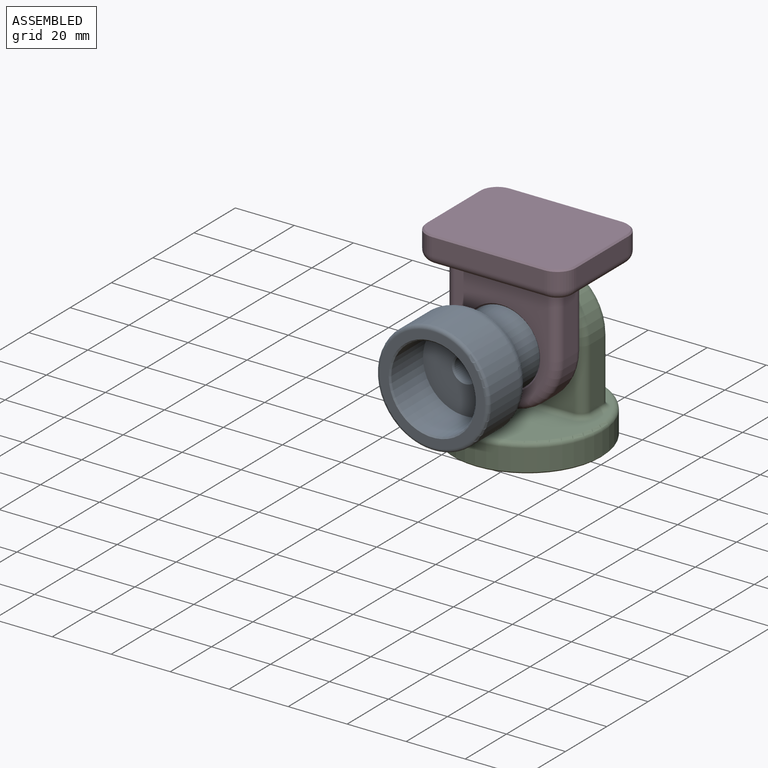
[diagram: assembled view]
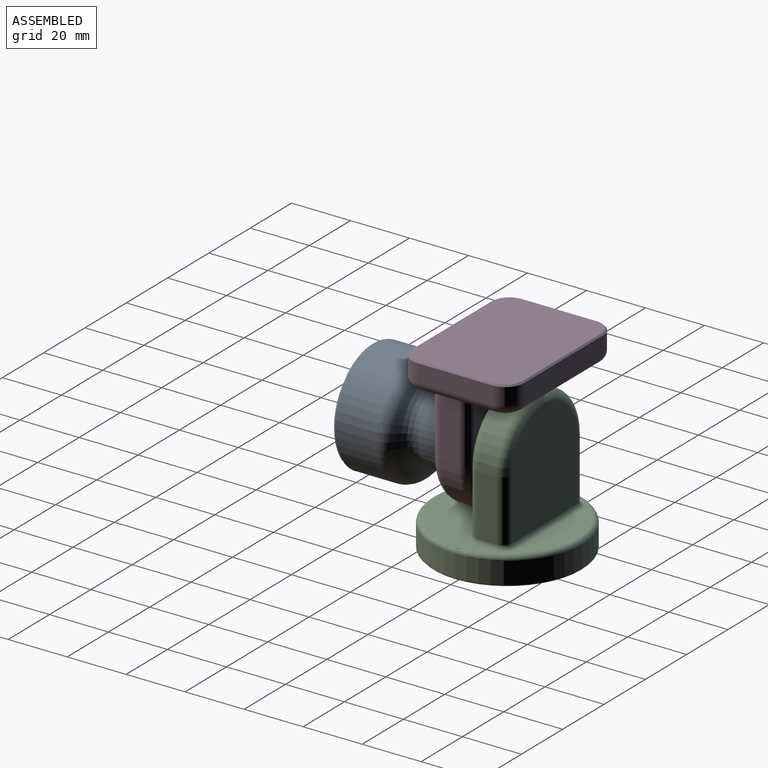
[diagram: assembled view, second angle]
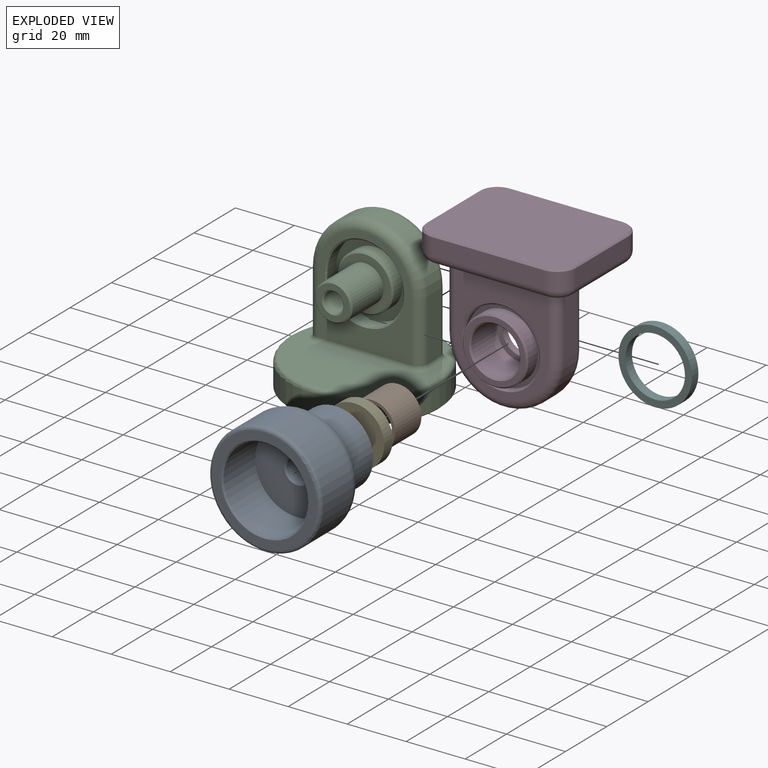
[diagram: exploded view]
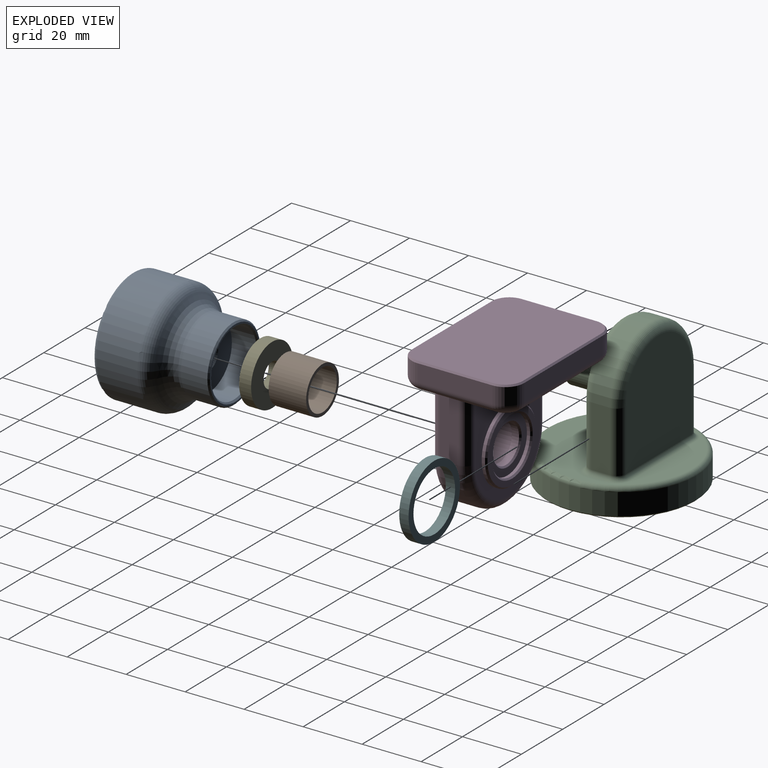
[diagram: exploded view, second angle]
ASSEMBLY  parts=6 mates=9
PART A: 17 faces, bbox 34.9x41.2x41.2 mm
  f0: cylinder r=19.05mm len=38.1mm, axis (1,0,0), area 1662.7mm2, adj f5,f10
  f1: plane 35.56x35.56mm, normal (1,0,0), area 305.4mm2, adj f10,f11
  f2: cylinder r=12.7mm len=25.4mm, axis (1,0,0), area 719.5mm2, adj f4,f15
  f3: plane 24.38x24.38mm, normal (-1,0,0), area 42.8mm2, adj f15,f16
  f4: torus R=19.05mm, axis (1,0,0), area 616.9mm2, adj f2,f5
  f5: torus R=13.97mm, axis (-1,0,0), area 640.3mm2, adj f0,f4
  f6: cylinder r=11.11mm len=22.23mm, axis (-1,0,0), area 585.2mm2, adj f7,f16
  f7: plane 22.23x22.23mm, normal (-1,0,0), area 325mm2, adj f6,f13
  f8: cylinder r=14.29mm len=28.58mm, axis (1,0,0), area 1379.5mm2, adj f9,f11
  f9: plane 28.58x28.58mm, normal (1,0,0), area 578.3mm2, adj f8,f14
  f10: torus R=17.78mm, axis (1,0,0), area 233mm2, adj f0,f1
  f11: cone r=14.29mm half-angle=45deg, axis (1,0,0), area 65.6mm2, adj f1,f8
  f12: cylinder r=3.97mm len=9.14mm, axis (1,0,0), area 228mm2, adj f13,f14
  f13: cone r=4.48mm half-angle=45deg, axis (-1,0,0), area 19.1mm2, adj f7,f12
  f14: cone r=3.97mm half-angle=45deg, axis (1,0,0), area 19.1mm2, adj f9,f12
  f15: cone r=12.19mm half-angle=45deg, axis (1,0,0), area 56.2mm2, adj f2,f3
  f16: cone r=11.11mm half-angle=45deg, axis (-1,0,0), area 51.3mm2, adj f3,f6
PART B: 4 faces, bbox 15.9x15.9x12.7 mm
  f0: cylinder r=7.94mm len=15.88mm, axis (0,0,-1), area 633.4mm2, adj f1,f2
  f1: plane 15.88x15.88mm, normal (0,0,1), area 49.1mm2, adj f0,f3
  f2: plane 15.88x15.88mm, normal (0,0,-1), area 49.1mm2, adj f0,f3
  f3: cylinder r=6.88mm len=13.77mm, axis (0,0,1), area 549.3mm2, adj f1,f2
PART C: 39 faces, bbox 55x55x52.4 mm
  f0: plane 18.03x18.03mm, normal (1,0,0), area 128.8mm2, adj f1,f32
  f1: cylinder r=6.35mm len=14.86mm, axis (-1,0,0), area 592.8mm2, adj f0,f5
  f2: plane 11.68x11.68mm, normal (1,0,0), area 62.5mm2, adj f5,f6
  f3: cone r=0mm half-angle=59deg, axis (1,0,0), area 39mm2, adj f4
  f4: cylinder r=3.26mm len=16.43mm, axis (1,0,0), area 336.8mm2, adj f3,f6
  f5: cone r=5.84mm half-angle=45deg, axis (-1,0,0), area 27.5mm2, adj f1,f2
  f6: cone r=3.26mm half-angle=45deg, axis (1,0,0), area 15.9mm2, adj f2,f4
  f7: cylinder r=9.53mm len=19.05mm, axis (1,0,0), area 254.6mm2, adj f9,f32
  f8: cylinder r=12.95mm len=25.91mm, axis (1,0,0), area 346.3mm2, adj f9,f33
  f9: plane 25.91x25.91mm, normal (1,0,0), area 242.2mm2, adj f7,f8
  f10: plane 49.78x49.78mm, normal (0,0,-1), area 1883.6mm2, adj f35,f38
  f11: plane 36.51x31.75mm, normal (-1,0,0), area 1051.1mm2, adj f12,f13,f16,f20
  f12: torus R=15.88mm, axis (-1,0,0), area 280.4mm2, adj f11,f13,f20,f21
  f13: cylinder r=3.17mm len=20.64mm, axis (0,0,-1), area 102.9mm2, adj f11,f12,f15,f22
  f14: cylinder r=25.4mm len=50.8mm, axis (0,0,-1), area 1185.7mm2, adj f34,f35
  f15: torus R=4.76mm, axis (0,0,1), area 14.7mm2, adj f13,f16,f18,f23
  f16: cylinder r=1.59mm len=31.75mm, axis (0,1,0), area 79.2mm2, adj f11,f15,f17,f23
  f17: torus R=4.76mm, axis (0,0,1), area 14.7mm2, adj f16,f19,f20,f23
  f18: cylinder r=1.59mm len=6.35mm, axis (-1,0,0), area 15.8mm2, adj f15,f22,f23,f24
  f19: cylinder r=1.59mm len=6.35mm, axis (1,0,0), area 15.8mm2, adj f17,f23,f25,f26
  f20: cylinder r=3.17mm len=20.64mm, axis (0,0,1), area 102.9mm2, adj f11,f12,f17,f26
  f21: cylinder r=19.05mm len=38.1mm, axis (-1,0,0), area 380mm2, adj f12,f22,f26,f27
  f22: plane 20.64x6.35mm, normal (0,1,0), area 131mm2, adj f13,f18,f21,f28
  f23: plane 47.63x47.63mm, normal (0,0,1), area 1145.6mm2, adj f15,f16,f17,f18,f19,f24,f25,f29
  f24: torus R=4.76mm, axis (0,0,1), area 14.7mm2, adj f18,f23,f28,f29
  f25: torus R=4.76mm, axis (0,0,1), area 14.7mm2, adj f19,f23,f29,f30
  f26: plane 20.64x6.35mm, normal (0,-1,0), area 131mm2, adj f19,f20,f21,f30
  f27: torus R=15.88mm, axis (-1,0,0), area 280.4mm2, adj f21,f28,f30,f31
  f28: cylinder r=3.17mm len=20.64mm, axis (0,0,1), area 102.9mm2, adj f22,f24,f27,f31
  f29: cylinder r=1.59mm len=31.75mm, axis (0,-1,0), area 79.2mm2, adj f23,f24,f25,f31
  f30: cylinder r=3.17mm len=20.64mm, axis (0,0,-1), area 102.9mm2, adj f25,f26,f27,f31
  f31: plane 36.51x31.75mm, normal (1,0,0), area 481.8mm2, adj f27,f28,f29,f30,f33
  f32: cone r=9.02mm half-angle=45deg, axis (-1,0,0), area 41.8mm2, adj f0,f7
  f33: cone r=12.95mm half-angle=45deg, axis (1,0,0), area 59.6mm2, adj f8,f31
  f34: torus R=23.81mm, axis (0,0,1), area 388.9mm2, adj f14,f23
  f35: cone r=24.89mm half-angle=45deg, axis (0,0,1), area 113.5mm2, adj f10,f14
  f36: cone r=0mm half-angle=59deg, axis (0,0,-1), area 57.7mm2, adj f37
  f37: cylinder r=3.97mm len=7.94mm, axis (0,0,-1), area 145.7mm2, adj f36,f38
  f38: cone r=3.97mm half-angle=45deg, axis (0,0,-1), area 19.1mm2, adj f10,f37
PART D: 62 faces, bbox 51.8x39.1x52.4 mm
  f0: plane 18.92x18.92mm, normal (0,1,0), area 132.4mm2, adj f56,f57
  f1: cylinder r=8.26mm len=16.51mm, axis (0,-1,0), area 645.5mm2, adj f29,f54
  f2: plane 36.51x31.75mm, normal (0,1,0), area 564.5mm2, adj f35,f36,f37,f43,f58
  f3: plane 36.51x31.75mm, normal (0,-1,0), area 503.1mm2, adj f31,f32,f33,f34,f40
  f4: plane 20.64x6.35mm, normal (1,0,0), area 131mm2, adj f12,f32,f35,f39
  f5: plane 20.64x6.35mm, normal (-1,0,0), area 131mm2, adj f12,f34,f37,f44
  f6: plane 25.4x5.84mm, normal (-1,0,0), area 148.4mm2, adj f17,f20,f27,f53
  f7: plane 38.1x5.84mm, normal (0,-1,0), area 222.6mm2, adj f17,f18,f23,f49
  f8: plane 25.4x5.84mm, normal (1,0,0), area 148.4mm2, adj f18,f19,f22,f46
  f9: plane 38.1x5.84mm, normal (0,1,0), area 222.6mm2, adj f19,f20,f26,f50
  f10: plane 44.45x31.75mm, normal (0,0,-1), area 766.9mm2, adj f38,f39,f40,f41,f42,f43,f44,f45
  f11: plane 49.78x37.08mm, normal (0,0,1), area 1816.9mm2, adj f21,f22,f23,f24,f25,f26,f27,f28
  f12: cylinder r=19.05mm len=38.1mm, axis (0,-1,0), area 380mm2, adj f4,f5,f33,f36
  f13: cylinder r=11.11mm len=22.23mm, axis (0,1,0), area 310.4mm2, adj f16,f30
  f14: plane 21.21x21.21mm, normal (0,-1,0), area 112mm2, adj f29,f30
  f15: cylinder r=12.7mm len=25.4mm, axis (0,-1,0), area 101.3mm2, adj f16,f31
  f16: plane 25.4x25.4mm, normal (0,-1,0), area 118.8mm2, adj f13,f15
  f17: cylinder r=6.35mm len=6.35mm, axis (0,0,-1), area 58.3mm2, adj f6,f7,f25,f51
  f18: cylinder r=6.35mm len=6.35mm, axis (0,0,1), area 58.3mm2, adj f7,f8,f21,f47
  f19: cylinder r=6.35mm len=6.35mm, axis (0,0,-1), area 58.3mm2, adj f8,f9,f24,f48
  f20: cylinder r=6.35mm len=6.35mm, axis (0,0,1), area 58.3mm2, adj f6,f9,f28,f52
  f21: cone r=5.84mm half-angle=45deg, axis (0,0,-1), area 6.9mm2, adj f11,f18,f22,f23
  f22: plane 25.4x0.51mm, normal (0.71,0,0.71), area 18.2mm2, adj f8,f11,f21,f24
  f23: plane 38.1x0.51mm, normal (0,-0.71,0.71), area 27.4mm2, adj f7,f11,f21,f25
  f24: cone r=5.84mm half-angle=45deg, axis (0,0,-1), area 6.9mm2, adj f11,f19,f22,f26
  f25: cone r=5.84mm half-angle=45deg, axis (0,0,-1), area 6.9mm2, adj f11,f17,f23,f27
  f26: plane 38.1x0.51mm, normal (0,0.71,0.71), area 27.4mm2, adj f9,f11,f24,f28
  f27: plane 25.4x0.51mm, normal (-0.71,0,0.71), area 18.2mm2, adj f6,f11,f25,f28
  f28: cone r=5.84mm half-angle=45deg, axis (0,0,-1), area 6.9mm2, adj f11,f20,f26,f27
  f29: cone r=8.26mm half-angle=45deg, axis (0,-1,0), area 38.4mm2, adj f1,f14
  f30: cone r=10.6mm half-angle=45deg, axis (0,1,0), area 49mm2, adj f13,f14
  f31: cone r=12.7mm half-angle=45deg, axis (0,-1,0), area 58.5mm2, adj f3,f15
  f32: cylinder r=3.17mm len=20.64mm, axis (0,0,1), area 102.9mm2, adj f3,f4,f33,f38
  f33: torus R=15.88mm, axis (0,-1,0), area 280.4mm2, adj f3,f12,f32,f34
  f34: cylinder r=3.17mm len=20.64mm, axis (0,0,-1), area 102.9mm2, adj f3,f5,f33,f42
  f35: cylinder r=3.17mm len=20.64mm, axis (0,0,-1), area 102.9mm2, adj f2,f4,f36,f41
  f36: torus R=15.88mm, axis (0,-1,0), area 280.4mm2, adj f2,f12,f35,f37
  f37: cylinder r=3.17mm len=20.64mm, axis (0,0,1), area 102.9mm2, adj f2,f5,f36,f45
  f38: torus R=4.76mm, axis (0,0,1), area 14.7mm2, adj f10,f32,f39,f40
  f39: cylinder r=1.59mm len=6.35mm, axis (0,1,0), area 15.8mm2, adj f4,f10,f38,f41
  f40: cylinder r=1.59mm len=31.75mm, axis (1,0,0), area 79.2mm2, adj f3,f10,f38,f42
  f41: torus R=4.76mm, axis (0,0,1), area 14.7mm2, adj f10,f35,f39,f43
  f42: torus R=4.76mm, axis (0,0,1), area 14.7mm2, adj f10,f34,f40,f44
  f43: cylinder r=1.59mm len=31.75mm, axis (-1,0,0), area 79.2mm2, adj f2,f10,f41,f45
  f44: cylinder r=1.59mm len=6.35mm, axis (0,-1,0), area 15.8mm2, adj f5,f10,f42,f45
  f45: torus R=4.76mm, axis (0,0,1), area 14.7mm2, adj f10,f37,f43,f44
  f46: cylinder r=3.17mm len=25.4mm, axis (0,-1,0), area 126.7mm2, adj f8,f10,f47,f48
  f47: torus R=3.17mm, axis (0,0,1), area 40.7mm2, adj f10,f18,f46,f49
  f48: torus R=3.17mm, axis (0,0,1), area 40.7mm2, adj f10,f19,f46,f50
  f49: cylinder r=3.17mm len=38.1mm, axis (-1,0,0), area 190mm2, adj f7,f10,f47,f51
  f50: cylinder r=3.17mm len=38.1mm, axis (1,0,0), area 190mm2, adj f9,f10,f48,f52
  f51: torus R=3.17mm, axis (0,0,1), area 40.7mm2, adj f10,f17,f49,f53
  f52: torus R=3.17mm, axis (0,0,1), area 40.7mm2, adj f10,f20,f50,f53
  f53: cylinder r=3.17mm len=25.4mm, axis (0,1,0), area 126.7mm2, adj f6,f10,f51,f52
  f54: plane 16.51x16.51mm, normal (0,-1,0), area 86.4mm2, adj f1,f55
  f55: cylinder r=6.38mm len=12.75mm, axis (0,1,0), area 96.7mm2, adj f54,f56
  f56: cone r=6.38mm half-angle=45deg, axis (0,1,0), area 29.9mm2, adj f0,f55
  f57: cylinder r=9.46mm len=18.92mm, axis (0,-1,0), area 65.7mm2, adj f0,f60
  f58: cylinder r=12.45mm len=24.89mm, axis (0,-1,0), area 86.4mm2, adj f2,f61
  f59: plane 23.88x23.88mm, normal (0,1,0), area 135.5mm2, adj f60,f61
  f60: cone r=9.46mm half-angle=45deg, axis (0,1,0), area 43.9mm2, adj f57,f59
  f61: cone r=11.94mm half-angle=45deg, axis (0,-1,0), area 55mm2, adj f58,f59
PART E: 4 faces, bbox 4.1x20.3x20.3 mm
  f0: cylinder r=10.16mm len=20.32mm, axis (1,0,0), area 259.4mm2, adj f1,f2
  f1: plane 20.32x20.32mm, normal (-1,0,0), area 270.8mm2, adj f0,f3
  f2: plane 20.32x20.32mm, normal (1,0,0), area 270.8mm2, adj f0,f3
  f3: cylinder r=4.13mm len=8.26mm, axis (1,0,0), area 105.4mm2, adj f1,f2
PART F: 4 faces, bbox 3.2x24.9x24.9 mm
  f0: cylinder r=10.1mm len=20.19mm, axis (1,0,0), area 201.4mm2, adj f2,f3
  f1: cylinder r=12.45mm len=24.89mm, axis (1,0,0), area 248.3mm2, adj f2,f3
  f2: plane 24.89x24.89mm, normal (-1,0,0), area 166.4mm2, adj f0,f1
  f3: plane 24.89x24.89mm, normal (1,0,0), area 166.4mm2, adj f0,f1
PLACE A rot(axis=(0.58,-0.58,-0.58),120deg) t=(-5.76,-64.84,-25.04)mm
PLACE B rot(axis=(-1,0,0),90deg) t=(-5.76,-28.33,-25.04)mm
PLACE C rot(axis=(0,0,-1),90deg) t=(-5.76,-18.8,-47.27)mm
PLACE D t=(-5.76,-18.8,6.71)mm fixed
PLACE E rot(axis=(0.58,0.58,0.58),120deg) t=(-4.25,-34.68,-25.04)mm
PLACE F rot(axis=(-0.71,-0.71,0),180deg) t=(-5.76,-14.04,-25.76)mm
MATE slider F.f0 <-> C.f7  axis (0,-1,0) through (-5.76,-17.21,-25.04)mm
MATE cylindrical C.f7 <-> F.f0  axis (0,-1,0) through (-5.76,-16.17,-25.04)mm
MATE cylindrical E.f0 <-> A.f6  axis (0,1,0) through (-5.76,-36.71,-25.04)mm
MATE slider D.f57 <-> A.f6  axis (0,-1,0) through (-5.76,-29.72,-25.04)mm
MATE slider A.f6 <-> E.f0  axis (0,1,0) through (-5.76,-38.8,-25.04)mm
MATE cylindrical D.f13 <-> A.f6  axis (0,1,0) through (-5.76,-31.95,-25.04)mm
MATE slider E.f0 <-> D.f13  axis (0,1,0) through (-5.76,-34.68,-25.04)mm
MATE cylindrical D.f1 <-> B.f0  axis (0,-1,0) through (-5.76,-34.68,-25.04)mm
MATE slider D.f13 <-> B.f0  axis (0,-1,0) through (-5.76,-34.68,-25.04)mm
